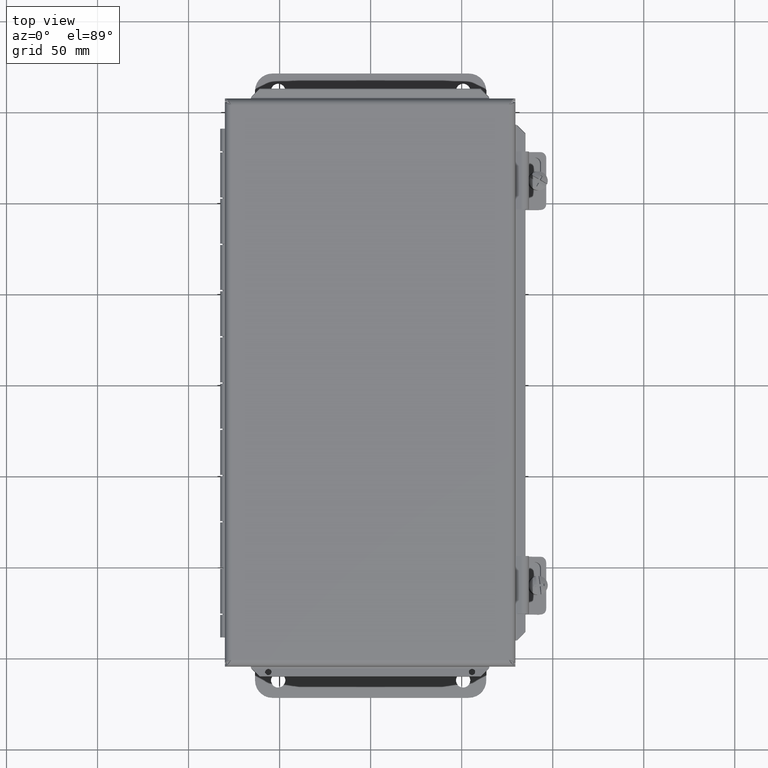
[diagram: clean part render]
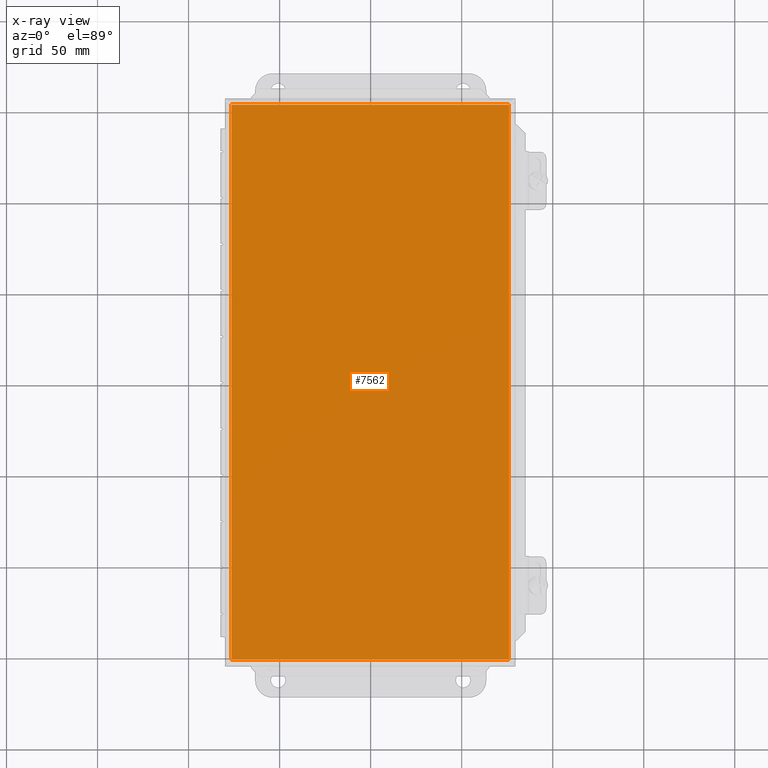
[diagram: x-ray — body ghosted, one internal face saturated and labeled with its STEP entity id]
A machine part, top view, then the same camera in x-ray: the body is ghosted and one INTERNAL B-rep face — a face not visible from any outside direction — is saturated and labeled: STEP entity #7562.
In plain terms, the highlighted planar face has unit normal (-0, 0, 1).
Its self-contained STEP definition (entity closure, byte-faithful):
#854=PLANE('',#8371);
#1378=LINE('',#12433,#2116);
#1395=LINE('',#12538,#2133);
#1413=LINE('',#12610,#2151);
#1450=LINE('',#12799,#2188);
#2116=VECTOR('',#9848,0.393700787401575);
#2133=VECTOR('',#9871,0.393700787401575);
#2151=VECTOR('',#9897,0.393700787401575);
#2188=VECTOR('',#9950,0.393700787401575);
#2835=FACE_OUTER_BOUND('',#3303,.T.);
#3303=EDGE_LOOP('',(#7153,#7154,#7155,#7156));
#3980=VERTEX_POINT('',#12421);
#3981=VERTEX_POINT('',#12427);
#3999=VERTEX_POINT('',#12536);
#4000=VERTEX_POINT('',#12537);
#4874=EDGE_CURVE('',#3980,#3981,#1378,.T.);
#4895=EDGE_CURVE('',#3999,#4000,#1395,.T.);
#4916=EDGE_CURVE('',#4000,#3980,#1413,.T.);
#4962=EDGE_CURVE('',#3981,#3999,#1450,.T.);
#7153=ORIENTED_EDGE('',*,*,#4874,.T.);
#7154=ORIENTED_EDGE('',*,*,#4962,.T.);
#7155=ORIENTED_EDGE('',*,*,#4895,.T.);
#7156=ORIENTED_EDGE('',*,*,#4916,.T.);
#7562=ADVANCED_FACE('',(#2835),#854,.F.);
#8371=AXIS2_PLACEMENT_3D('',#13452,#10287,#10288);
#9848=DIRECTION('',(-1.,-4.65692083487965E-16,0.));
#9871=DIRECTION('',(1.,2.32846041743982E-16,0.));
#9897=DIRECTION('',(0.,-1.,5.38196304227173E-45));
#9950=DIRECTION('',(5.82454473538812E-17,1.,1.10523163603319E-33));
#10287=DIRECTION('center_axis',(0.,-5.38196304227173E-45,1.));
#10288=DIRECTION('ref_axis',(1.,-4.65692083487965E-16,0.));
#12421=CARTESIAN_POINT('',(3.0035,-6.0035,-3.49676543189026E-16));
#12427=CARTESIAN_POINT('',(-3.0035,-6.0035,0.));
#12433=CARTESIAN_POINT('',(-1.50175,-6.0035,0.));
#12536=CARTESIAN_POINT('',(-3.0035,6.0035,0.));
#12537=CARTESIAN_POINT('',(3.0035,6.0035,-3.49676543189026E-16));
#12538=CARTESIAN_POINT('',(1.50175,6.0035,0.));
#12610=CARTESIAN_POINT('',(3.0035,-3.00175,0.));
#12799=CARTESIAN_POINT('',(-3.0035,3.00175,0.));
#13452=CARTESIAN_POINT('Origin',(-6.99353086378051E-16,-6.99353086378051E-16,
0.));